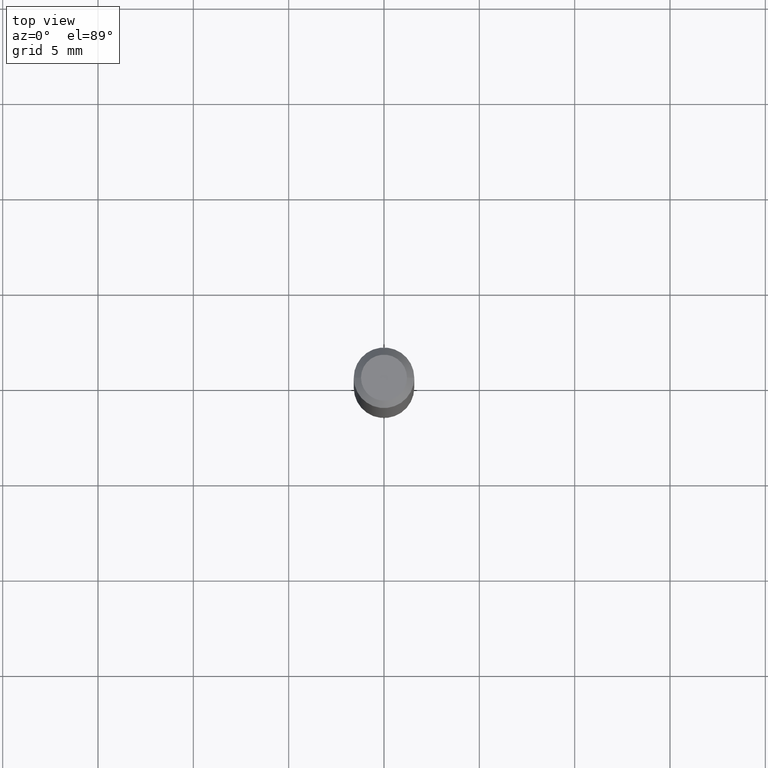
[diagram: clean part render]
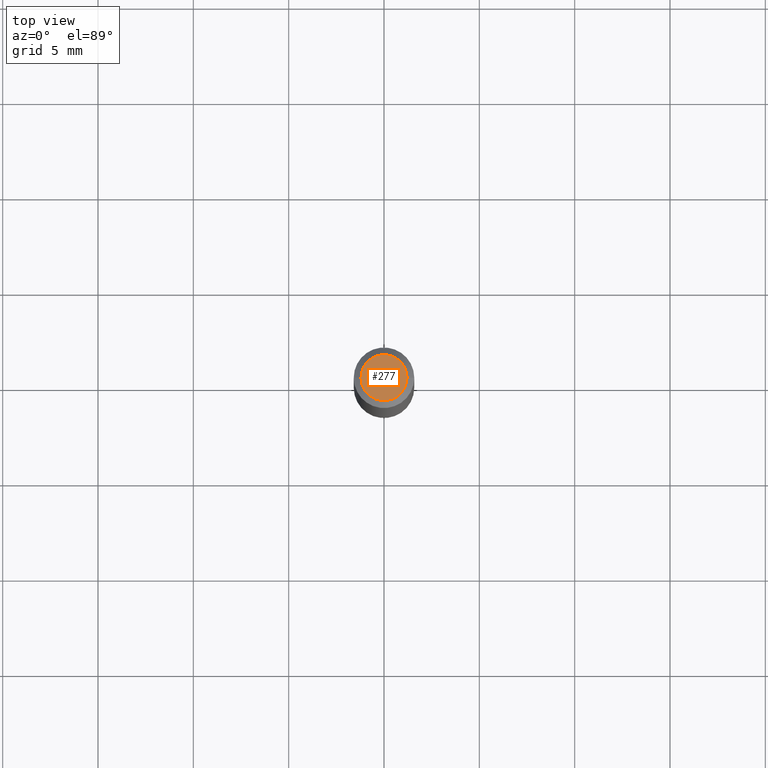
[diagram: same view with one face highlighted and labeled with its STEP entity id]
A machine part, top view. The second image highlights one B-rep face of the part: STEP entity #277.
In plain terms, the highlighted planar face has unit normal (0, -0, -1).
Its self-contained STEP definition (entity closure, byte-faithful):
#12 = DIRECTION ( 'NONE',  ( 2.438088387897960049E-29, -3.491481338843145188E-15, -1.000000000000000000 ) ) ;
#15 = CARTESIAN_POINT ( 'NONE',  ( -5.757869704046039586E-45, 8.220711943787967025E-31, 2.354505479474161294E-16 ) ) ;
#43 = CARTESIAN_POINT ( 'NONE',  ( -0.04749999999999999362, 3.578768372314215436E-16, 2.354505479474137135E-16 ) ) ;
#46 = DIRECTION ( 'NONE',  ( 1.000000000000000000, -6.982962677686267499E-15, 4.852736867747366768E-29 ) ) ;
#73 = ORIENTED_EDGE ( 'NONE', *, *, #327, .T. ) ;
#112 = VERTEX_POINT ( 'NONE', #43 ) ;
#119 = PLANE ( 'NONE',  #298 ) ;
#134 = CARTESIAN_POINT ( 'NONE',  ( -5.757869704046039586E-45, 8.220711943787967025E-31, 2.354505479474161294E-16 ) ) ;
#142 = AXIS2_PLACEMENT_3D ( 'NONE', #15, #452, #46 ) ;
#150 = CIRCLE ( 'NONE', #142, 0.04749999999999999362 ) ;
#197 = CARTESIAN_POINT ( 'NONE',  ( 0.04749999999999999362, -4.035134999187574186E-16, 2.354505479474186932E-16 ) ) ;
#258 = EDGE_LOOP ( 'NONE', ( #73, #464 ) ) ;
#262 = CARTESIAN_POINT ( 'NONE',  ( 3.316907271900976096E-16, 0.04749999999999999362, -4.812008962134135024E-17 ) ) ;
#265 = AXIS2_PLACEMENT_3D ( 'NONE', #134, #351, #457 ) ;
#277 = ADVANCED_FACE ( 'NONE', ( #308 ), #119, .F. ) ;
#298 = AXIS2_PLACEMENT_3D ( 'NONE', #262, #12, #415 ) ;
#308 = FACE_OUTER_BOUND ( 'NONE', #258, .T. ) ;
#327 = EDGE_CURVE ( 'NONE', #112, #377, #150, .T. ) ;
#351 = DIRECTION ( 'NONE',  ( -2.445468806185136597E-29, 3.491481338843145583E-15, 1.000000000000000000 ) ) ;
#377 = VERTEX_POINT ( 'NONE', #197 ) ;
#386 = CIRCLE ( 'NONE', #265, 0.04749999999999999362 ) ;
#415 = DIRECTION ( 'NONE',  ( -1.000000000000000000, 6.982962677686265922E-15, -4.876176775795935793E-29 ) ) ;
#436 = EDGE_CURVE ( 'NONE', #377, #112, #386, .T. ) ;
#452 = DIRECTION ( 'NONE',  ( -2.445468806185136597E-29, 3.491481338843145583E-15, 1.000000000000000000 ) ) ;
#457 = DIRECTION ( 'NONE',  ( 1.000000000000000000, -6.982962677686267499E-15, 4.852736867747366768E-29 ) ) ;
#464 = ORIENTED_EDGE ( 'NONE', *, *, #436, .T. ) ;